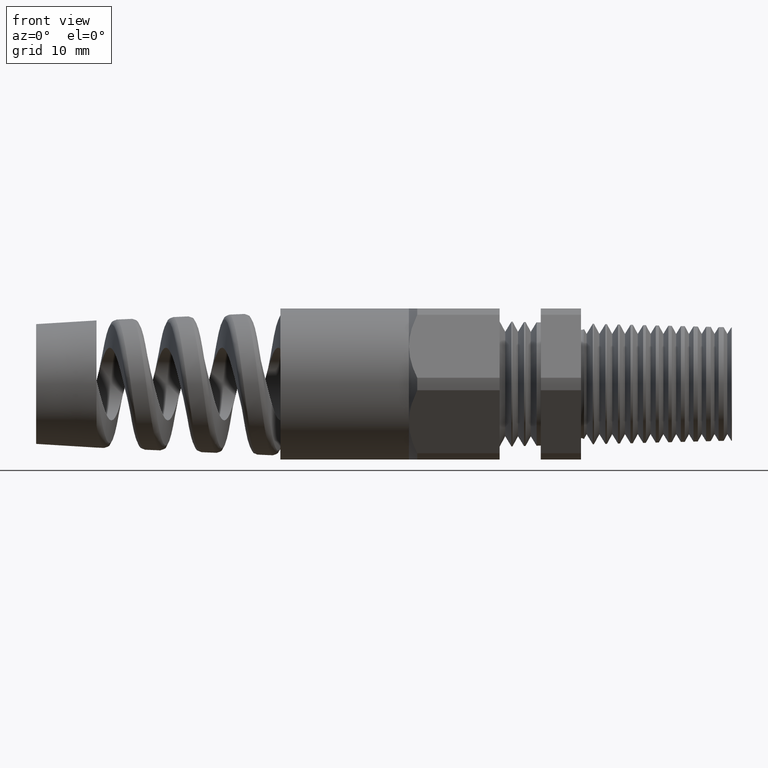
[diagram: clean part render]
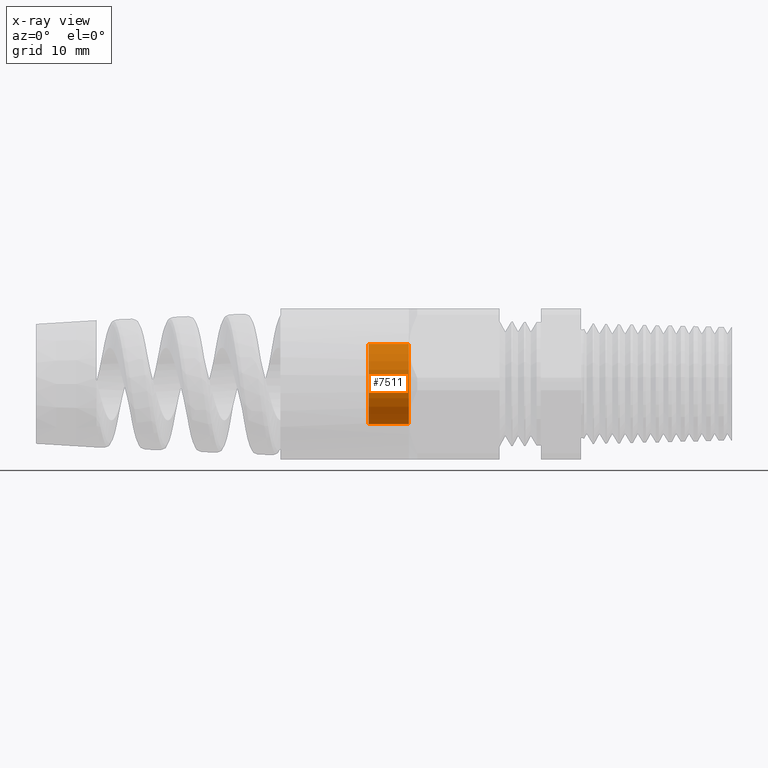
[diagram: x-ray — body ghosted, one internal face saturated and labeled with its STEP entity id]
A machine part, front view, then the same camera in x-ray: the body is ghosted and one INTERNAL B-rep face — a face not visible from any outside direction — is saturated and labeled: STEP entity #7511.
In plain terms, the highlighted cylindrical surface (partial cylindrical patch) has radius 3.9769 mm, axis along (1, 0, 0).
Its self-contained STEP definition (entity closure, byte-faithful):
#1813 = DIRECTION ( 'NONE',  ( 0.0000000000000000000, 0.0000000000000000000, -1.000000000000000000 ) ) ;
#1814 = DIRECTION ( 'NONE',  ( 1.000000000000000000, 0.0000000000000000000, 0.0000000000000000000 ) ) ;
#1815 = CARTESIAN_POINT ( 'NONE',  ( -1.485009101506120400, 0.0000000000000000000, 0.0000000000000000000 ) ) ;
#1816 = AXIS2_PLACEMENT_3D ( 'NONE', #1815, #1814, #1813 ) ;
#1818 = CYLINDRICAL_SURFACE ( 'NONE', #1816, 0.1565692987783991500 ) ;
#1819 = FACE_OUTER_BOUND ( 'NONE', #7505, .T. ) ;
#1826 = DIRECTION ( 'NONE',  ( 1.000000000000000000, 0.0000000000000000000, 0.0000000000000000000 ) ) ;
#1827 = VECTOR ( 'NONE', #1826, 39.37007874015748100 ) ;
#1828 = CARTESIAN_POINT ( 'NONE',  ( -1.485009101506120400, 1.917420905937121000E-017, 0.1565692987783991500 ) ) ;
#1829 = LINE ( 'NONE', #1828, #1827 ) ;
#1959 = CARTESIAN_POINT ( 'NONE',  ( -1.139999999999999900, 0.0000000000000000000, 0.0000000000000000000 ) ) ;
#2002 = DIRECTION ( 'NONE',  ( 0.0000000000000000000, 0.0000000000000000000, 1.000000000000000000 ) ) ;
#2003 = DIRECTION ( 'NONE',  ( 1.000000000000000000, 0.0000000000000000000, 0.0000000000000000000 ) ) ;
#2004 = CARTESIAN_POINT ( 'NONE',  ( -0.9825196850393698200, 0.0000000000000000000, 0.0000000000000000000 ) ) ;
#2005 = AXIS2_PLACEMENT_3D ( 'NONE', #2004, #2003, #2002 ) ;
#2006 = CIRCLE ( 'NONE', #2005, 0.1565692987783991500 ) ;
#2015 = DIRECTION ( 'NONE',  ( 0.0000000000000000000, 0.0000000000000000000, -1.000000000000000000 ) ) ;
#2016 = DIRECTION ( 'NONE',  ( -1.000000000000000000, 0.0000000000000000000, 0.0000000000000000000 ) ) ;
#2017 = AXIS2_PLACEMENT_3D ( 'NONE', #1959, #2016, #2015 ) ;
#2018 = CIRCLE ( 'NONE', #2017, 0.1565692987783991500 ) ;
#3499 = CARTESIAN_POINT ( 'NONE',  ( -0.9825196850393698200, 1.917420905937121000E-017, 0.1565692987783991500 ) ) ;
#3756 = CARTESIAN_POINT ( 'NONE',  ( -1.139999999999999900, 1.917420905937121000E-017, 0.1565692987783991500 ) ) ;
#3757 = CARTESIAN_POINT ( 'NONE',  ( -1.139999999999999900, 0.0000000000000000000, -0.1565692987783991500 ) ) ;
#6053 = DIRECTION ( 'NONE',  ( 1.000000000000000000, 0.0000000000000000000, 0.0000000000000000000 ) ) ;
#6054 = VECTOR ( 'NONE', #6053, 39.37007874015748100 ) ;
#6055 = CARTESIAN_POINT ( 'NONE',  ( -1.485009101506120400, 0.0000000000000000000, -0.1565692987783991500 ) ) ;
#6059 = LINE ( 'NONE', #6055, #6054 ) ;
#6117 = CARTESIAN_POINT ( 'NONE',  ( -0.9825196850393698200, 0.0000000000000000000, -0.1565692987783991500 ) ) ;
#6293 = ORIENTED_EDGE ( 'NONE', *, *, #6296, .F. ) ;
#6296 = EDGE_CURVE ( 'NONE', #7378, #6372, #6059, .T. ) ;
#6372 = VERTEX_POINT ( 'NONE', #6117 ) ;
#7201 = VERTEX_POINT ( 'NONE', #3499 ) ;
#7378 = VERTEX_POINT ( 'NONE', #3757 ) ;
#7388 = ORIENTED_EDGE ( 'NONE', *, *, #7605, .T. ) ;
#7391 = VERTEX_POINT ( 'NONE', #3756 ) ;
#7473 = ORIENTED_EDGE ( 'NONE', *, *, #7506, .T. ) ;
#7505 = EDGE_LOOP ( 'NONE', ( #7388, #7473, #7515, #6293 ) ) ;
#7506 = EDGE_CURVE ( 'NONE', #7391, #7201, #1829, .T. ) ;
#7511 = ADVANCED_FACE ( 'NONE', ( #1819 ), #1818, .F. ) ;
#7515 = ORIENTED_EDGE ( 'NONE', *, *, #7613, .T. ) ;
#7605 = EDGE_CURVE ( 'NONE', #7378, #7391, #2018, .T. ) ;
#7613 = EDGE_CURVE ( 'NONE', #7201, #6372, #2006, .T. ) ;